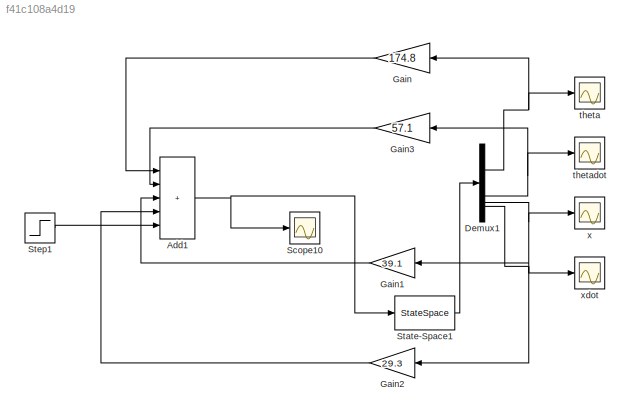
MODEL slx_f41c108a4d19
KIND model
CONFIG AbsTol = auto
CONFIG EnableMultiTasking = off
CONFIG FixedStep = auto
CONFIG MaxStep = auto
CONFIG MinStep = auto
CONFIG RelTol = 1e-3
CONFIG SampleTimeConstraint = Unconstrained
CONFIG SolverName = VariableStepAuto
CONFIG StartTime = 0.0
CONFIG StopTime = 2
BLOCK [Sum] Add1
  IconShape = rectangular
  Inputs = +++++
BLOCK [Demux] Demux1
BLOCK [Gain] Gain
  Gain = 174.8
  NameLocation = top
BLOCK [Gain] Gain1
  Gain = 39.1
  NameLocation = top
BLOCK [Gain] Gain2
  Gain = 29.3
  NameLocation = top
BLOCK [Gain] Gain3
  Gain = 57.1
  NameLocation = top
BLOCK [Scope] Scope10
  Floating = off
  NumInputPorts = 1
  ScopeSpecificationString = Simulink.scopes.TimeScopeBlockCfg('CurrentConfiguration', extmgr.ConfigurationSet(extmgr.Configuration('Core','General UI',true),extmgr.Configuration('Core','Source UI',true),extmgr.Configuration('Sources','WiredSimulink',true,'DataLoggingVariableName','ScopeData1'),extmgr.Configuration('Visuals','Time Domain',true,'SerializedDisplays',{struct('MinYLimReal','-5.94318','MaxYLimReal','11.77146','YLa...<+1366ch>
BLOCK [StateSpace] State-Space1
  A = A
  AllowTunableDMatrix = on
  B = B
  C = C
  D = D
  InitialCondition = 0
  ParameterTunability = Unconstrained
BLOCK [Step] Step1
  After = 10
  SampleTime = 0
BLOCK [Scope] theta
  Floating = off
  NumInputPorts = 1
  ScopeSpecificationString = Simulink.scopes.TimeScopeBlockCfg('CurrentConfiguration', extmgr.ConfigurationSet(extmgr.Configuration('Core','General UI',true),extmgr.Configuration('Core','Source UI',true),extmgr.Configuration('Sources','WiredSimulink',true,'DataLoggingVariableName','ScopeData2'),extmgr.Configuration('Visuals','Time Domain',true,'SerializedDisplays',{struct('MinYLimReal','-0.07863','MaxYLimReal','0.0441','YLabe...<+1473ch>
BLOCK [Scope] thetadot
  Floating = off
  NumInputPorts = 1
  ScopeSpecificationString = Simulink.scopes.TimeScopeBlockCfg('CurrentConfiguration', extmgr.ConfigurationSet(extmgr.Configuration('Core','General UI',true),extmgr.Configuration('Core','Source UI',true),extmgr.Configuration('Sources','WiredSimulink',true,'DataLoggingVariableName','ScopeData3'),extmgr.Configuration('Visuals','Time Domain',true,'SerializedDisplays',{struct('MinYLimReal','-0.42583','MaxYLimReal','0.33325','YLab...<+1456ch>
BLOCK [Scope] x
  Floating = off
  NumInputPorts = 1
  ScopeSpecificationString = Simulink.scopes.TimeScopeBlockCfg('CurrentConfiguration', extmgr.ConfigurationSet(extmgr.Configuration('Core','General UI',true),extmgr.Configuration('Core','Source UI',true),extmgr.Configuration('Sources','WiredSimulink',true,'DataLoggingVariableName','ScopeData4'),extmgr.Configuration('Visuals','Time Domain',true,'SerializedDisplays',{struct('MinYLimReal','-0.28507','MaxYLimReal','0.12814','YLab...<+1456ch>
BLOCK [Scope] xdot
  Floating = off
  NumInputPorts = 1
  ScopeSpecificationString = Simulink.scopes.TimeScopeBlockCfg('CurrentConfiguration', extmgr.ConfigurationSet(extmgr.Configuration('Core','General UI',true),extmgr.Configuration('Core','Source UI',true),extmgr.Configuration('Sources','WiredSimulink',true),extmgr.Configuration('Visuals','Time Domain',true,'SerializedDisplays',{struct('MinYLimReal','-0.77801','MaxYLimReal','0.59025','YLabelReal','','MinYLimMag','0.00000','MaxY...<+1417ch>
NET Add1:1 -> Scope10:1, State-Space1:1
NET Demux1:1 -> Gain:1, theta:1
NET Demux1:2 -> Gain3:1, thetadot:1
NET Demux1:3 -> Gain1:1, x:1
NET Demux1:4 -> Gain2:1, xdot:1
LINE Gain1:1 -> Add1:3
LINE Gain2:1 -> Add1:4
LINE Gain3:1 -> Add1:2
LINE Gain:1 -> Add1:1
LINE State-Space1:1 -> Demux1:1
LINE Step1:1 -> Add1:5
note: NET lines group one-source signal fan-out (src -> all destinations, sorted); 1:1 wires keep LINE
